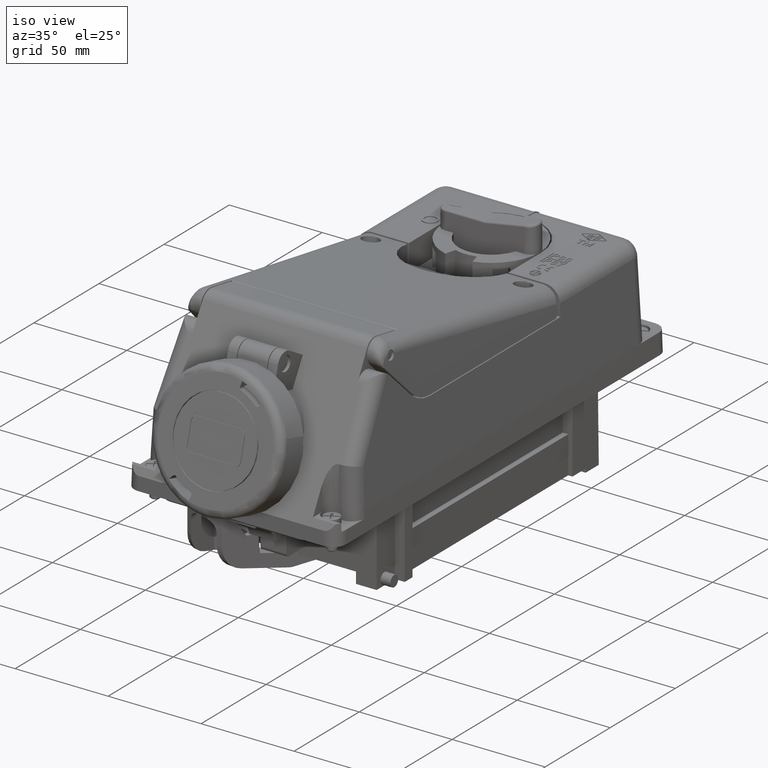
[diagram: clean part render]
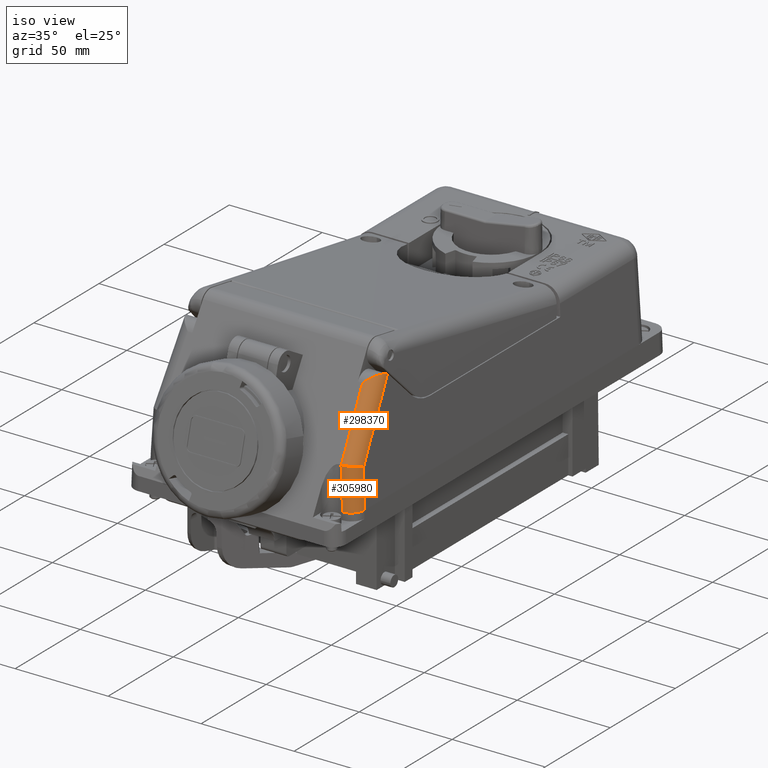
[diagram: same view with one multi-face feature highlighted, each face labeled with its STEP entity id]
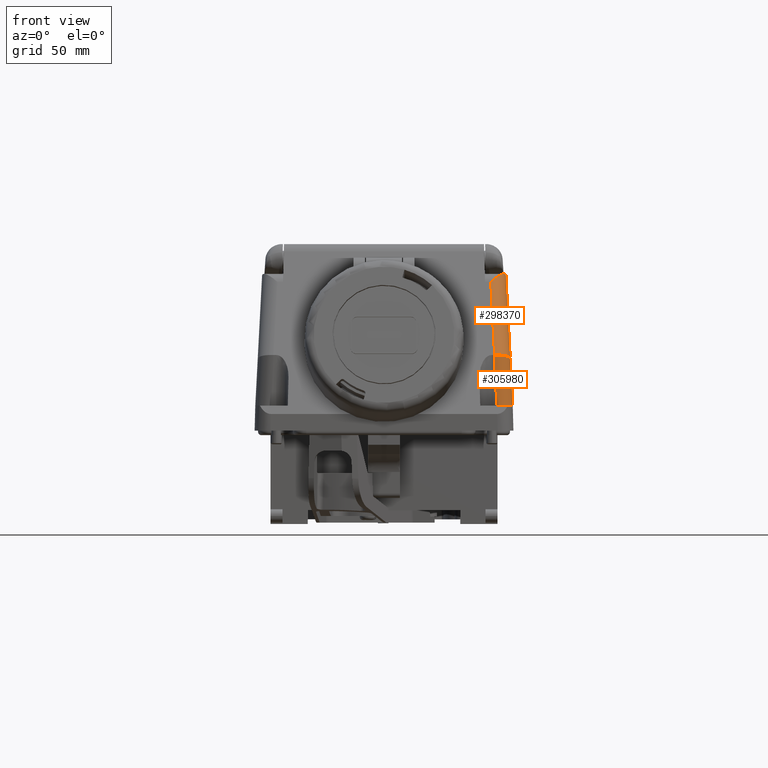
[diagram: same view with one multi-face feature highlighted, each face labeled with its STEP entity id]
A machine part, iso view. The highlighted faces form ONE feature: a constant-radius fillet chain: 2 tangent blend faces with common blend radius 7 mm. The faces share edges in the B-rep.
A second angle (front view) of the same feature is appended — it is thin or edge-on in the first view.
Their STEP definitions:
[1] entity #298370 (Cylinder):
#45150=CARTESIAN_POINT('',(329.221085170433,-44.4128734806658,
0.36635309462278));
#45160=DIRECTION('',(-0.0453397938043386,0.499485761991291,
0.86513483149493));
#45170=VECTOR('',#45160,1.);
#45180=LINE('',#45150,#45170);
#45190=CARTESIAN_POINT('',(328.626259109563,-37.859973184115,
11.7163108416975));
#45200=VERTEX_POINT('',#45190);
#45210=CARTESIAN_POINT('',(326.713128967567,-16.783978200918,
48.2210097858363));
#45220=VERTEX_POINT('',#45210);
#45230=EDGE_CURVE('',#45200,#45220,#45180,.T.);
#278890=CARTESIAN_POINT('',(320.025918947712,-26.1863223986818,
45.5693194323287));
#278900=VERTEX_POINT('',#278890);
#278930=CARTESIAN_POINT('',(321.710776016821,-44.7475474593456,
13.4203303376661));
#278940=DIRECTION('',(-0.0453397938045354,0.49948576199129,
0.865134831494919));
#278950=VECTOR('',#278940,1.);
#278960=LINE('',#278930,#278950);
#278970=CARTESIAN_POINT('',(321.71633446719,-44.8087821184707,
13.3142687828944));
#278980=VERTEX_POINT('',#278970);
#278990=EDGE_CURVE('',#278980,#278900,#278960,.T.);
#280900=CARTESIAN_POINT('',(320.025918947713,-20.124144372365,
42.0693197784372));
#280910=DIRECTION('',(0.722959125333056,-0.345445367856198,
-0.598329007256342));
#280920=DIRECTION('',(0.690890804033216,0.361479526920452,
0.626100989074209));
#280930=AXIS2_PLACEMENT_3D('',#280900,#280910,#280920);
#280940=ELLIPSE('',#280930,9.68242844542025,7.);
#280950=EDGE_CURVE('',#45220,#278900,#280940,.T.);
#298200=CARTESIAN_POINT('',(322.230678427154,-44.4128734597496,
1.40093495334191E-6));
#298210=DIRECTION('',(-0.0453397938045353,0.499485761991291,
0.865134831494919));
#298220=DIRECTION('',(1.63066936511445E-21,0.866025432330981,
-0.499999950555935));
#298230=AXIS2_PLACEMENT_3D('',#298200,#298210,#298220);
#298240=CYLINDRICAL_SURFACE('',#298230,7.);
#298250=CARTESIAN_POINT('',(321.635852366281,-37.8599731631989,
11.3499591479969));
#298260=DIRECTION('',(0.0503754839753367,-0.271137451399429,
-0.961221510923925));
#298270=DIRECTION('',(-0.0141902406644133,-0.962540639375098,
0.27076586679503));
#298280=AXIS2_PLACEMENT_3D('',#298250,#298260,#298270);
#298290=ELLIPSE('',#298280,7.22170995886985,7.);
#298300=EDGE_CURVE('',#45200,#278980,#298290,.T.);
#298310=ORIENTED_EDGE('',*,*,#298300,.F.);
#298320=ORIENTED_EDGE('',*,*,#278990,.F.);
#298330=ORIENTED_EDGE('',*,*,#280950,.T.);
#298340=ORIENTED_EDGE('',*,*,#45230,.T.);
#298350=EDGE_LOOP('',(#298340,#298330,#298320,#298310));
#298360=FACE_OUTER_BOUND('',#298350,.T.);
#298370=ADVANCED_FACE('',(#298360),#298240,.T.);
[2] entity #305980 (Cylinder):
#45190=CARTESIAN_POINT('',(328.626259109563,-37.859973184115,
11.7163108416975));
#45200=VERTEX_POINT('',#45190);
#46020=CARTESIAN_POINT('',(329.711951581492,-38.4024460063102,
-8.99993564698684));
#46030=VERTEX_POINT('',#46020);
#46060=CARTESIAN_POINT('',(329.221085262574,-38.1571816757294,
0.366351693700609));
#46070=DIRECTION('',(0.0523180711154625,-0.0261410412465996,
-0.998288267684891));
#46080=VECTOR('',#46070,1.);
#46090=LINE('',#46060,#46080);
#46100=EDGE_CURVE('',#45200,#46030,#46090,.T.);
#278970=CARTESIAN_POINT('',(321.71633446719,-44.8087821184707,
13.3142687828944));
#278980=VERTEX_POINT('',#278970);
#279010=CARTESIAN_POINT('',(320.867284808342,-37.475953725851,
26.0151017967106));
#279020=DIRECTION('',(6.32178011026033E-14,0.866025432330981,
-0.499999950555935));
#279030=DIRECTION('',(0.0595083718710149,-0.499113853895431,
-0.864490667692203));
#279040=AXIS2_PLACEMENT_3D('',#279010,#279020,#279030);
#279050=ELLIPSE('',#279040,14.6902884902408,7.);
#279060=CARTESIAN_POINT('',(321.542715130496,-44.8110378642777,
13.3103617160326));
#279070=VERTEX_POINT('',#279060);
#279080=EDGE_CURVE('',#278980,#279070,#279050,.T.);
#279700=CARTESIAN_POINT('',(322.716752313022,-45.3976526564379,
-9.0916022738343));
#279710=VERTEX_POINT('',#279700);
#279910=CARTESIAN_POINT('',(322.230678519292,-45.1547829401038,
0.183238238640484));
#279920=DIRECTION('',(0.0523180711154625,-0.0261410412465996,
-0.998288267684891));
#279930=VECTOR('',#279920,1.);
#279940=LINE('',#279910,#279930);
#279950=EDGE_CURVE('',#279070,#279710,#279940,.T.);
#296230=CARTESIAN_POINT('',(322.473882021123,-38.1571816087764,
1.75808123602372E-6));
#296240=DIRECTION('',(0.0261679842648657,-0.0261679272110053,
-0.999315003482382));
#296250=DIRECTION('',(5.95194889054321E-15,-0.999657326470078,
0.0261768912343549));
#296260=AXIS2_PLACEMENT_3D('',#296230,#296240,#296250);
#296270=CYLINDRICAL_SURFACE('',#296260,7.);
#296300=CARTESIAN_POINT('',(322.230678519292,-38.1571816548133,0.));
#296310=DIRECTION('',(0.0523180711154625,-0.0261410412465996,
-0.998288267684891));
#296320=DIRECTION('',(-0.998629534758663,0.,-0.0523359561649146));
#296330=AXIS2_PLACEMENT_3D('',#296300,#296310,#296320);
#296340=CYLINDRICAL_SURFACE('',#296330,7.);
#296350=CARTESIAN_POINT('',(322.716752313022,-45.3976526564379,
-9.0916022738343));
#296360=CARTESIAN_POINT('',(322.830573127503,-45.3975356326443,
-9.08713330570449));
#296370=CARTESIAN_POINT('',(322.9443683949,-45.3946404672233,
-9.08273808913364));
#296380=CARTESIAN_POINT('',(323.058085251456,-45.3889661858191,
-9.07841872711425));
#296390=CARTESIAN_POINT('',(323.171844691516,-45.3832897795691,
-9.07409774762515));
#296400=CARTESIAN_POINT('',(323.285690732214,-45.3748216151378,
-9.06984647018852));
#296410=CARTESIAN_POINT('',(323.39942567793,-45.3635480470977,
-9.06567301960673));
#296420=CARTESIAN_POINT('',(323.513160306723,-45.3522745104714,
-9.06149958065426));
#296430=CARTESIAN_POINT('',(323.626782406735,-45.3381955980786,
-9.05740402416194));
#296440=CARTESIAN_POINT('',(323.740087102496,-45.321317659571,
-9.05339423343442));
#296450=CARTESIAN_POINT('',(323.853391622684,-45.3044397472169,
-9.04938444892034));
#296460=CARTESIAN_POINT('',(323.966377262418,-45.2847629647088,
-9.04546048408962));
#296470=CARTESIAN_POINT('',(324.078837108675,-45.2623145476343,
-9.04162975539008));
#296480=CARTESIAN_POINT('',(324.191296913376,-45.2398661388551,
-9.0377990281061));
#296490=CARTESIAN_POINT('',(324.303229444179,-45.2146463756392,
-9.03406158778131));
#296500=CARTESIAN_POINT('',(324.41443066417,-45.1867032052926,
-9.03042419551262));
#296510=CARTESIAN_POINT('',(324.525631972724,-45.1587600126914,
-9.02678680034702));
#296520=CARTESIAN_POINT('',(324.63610052207,-45.1280938104254,
-9.02324949973623));
#296530=CARTESIAN_POINT('',(324.745639841315,-45.0947720477873,
-9.01981824682189));
#296540=CARTESIAN_POINT('',(324.855179378802,-45.06145021876,
-9.01638698707124));
#296550=CARTESIAN_POINT('',(324.963788305758,-45.0254733342588,
-9.01306181603299));
#296560=CARTESIAN_POINT('',(325.071282185679,-44.9869260928552,
-9.00984776233645));
#296570=CARTESIAN_POINT('',(325.178789961342,-44.9483738684471,
-9.00663329315897));
#296580=CARTESIAN_POINT('',(325.285123581014,-44.9072749426467,
-9.00353164428174));
#296590=CARTESIAN_POINT('',(325.390278771093,-44.8636604577511,
-9.00054216812116));
#296600=CARTESIAN_POINT('',(325.495490576975,-44.8200224907136,
-8.99755108241955));
#296610=CARTESIAN_POINT('',(325.59975471805,-44.7737667243069,
-8.99466577991118));
#296620=CARTESIAN_POINT('',(325.702881392245,-44.7249626216755,
-8.99189189899246));
#296630=CARTESIAN_POINT('',(325.806007963731,-44.6761585676514,
-8.98911802083645));
#296640=CARTESIAN_POINT('',(325.907995741843,-44.6248067602836,
-8.98645560112384));
#296650=CARTESIAN_POINT('',(326.008660482497,-44.5709960395684,
-8.98390955247106));
#296660=CARTESIAN_POINT('',(326.109325241706,-44.5171853089353,
-8.98136350334903));
#296670=CARTESIAN_POINT('',(326.208665680817,-44.460916359105,
-8.97893385750858));
#296680=CARTESIAN_POINT('',(326.306507549372,-44.4022954905257,
-8.97662467769541));
#296690=CARTESIAN_POINT('',(326.404355328406,-44.3436710807485,
-8.97431535838819));
#296700=CARTESIAN_POINT('',(326.500678878542,-44.2827113795683,
-8.97212707782697));
#296710=CARTESIAN_POINT('',(326.595386989399,-44.2194914262323,
-8.97006145471333));
#296720=CARTESIAN_POINT('',(326.690131761686,-44.1562470005056,
-8.96799503199872));
#296730=CARTESIAN_POINT('',(326.783440410976,-44.0906183915446,
-8.96604746661511));
#296740=CARTESIAN_POINT('',(326.87514012079,-44.0227102463228,
-8.96422280827126));
#296750=CARTESIAN_POINT('',(326.96683973537,-43.9548021716266,
-8.96239815182241));
#296760=CARTESIAN_POINT('',(327.056929221603,-43.8846153884602,
-8.96069642744595));
#296770=CARTESIAN_POINT('',(327.145244858861,-43.8122725370622,
-8.9591208563051));
#296780=CARTESIAN_POINT('',(327.233560508708,-43.7399296753518,
-8.95754528493966));
#296790=CARTESIAN_POINT('',(327.320101184489,-43.6654316745184,
-8.95609588668559));
#296800=CARTESIAN_POINT('',(327.404716261134,-43.5889164481353,
-8.95477496822985));
#296810=CARTESIAN_POINT('',(327.489335545954,-43.5123974164069,
-8.95345398408063));
#296820=CARTESIAN_POINT('',(327.572011050389,-43.4338788007205,
-8.95226173211173));
#296830=CARTESIAN_POINT('',(327.652656864746,-43.3534623458567,
-8.9511989234542));
#296840=CARTESIAN_POINT('',(327.733343188248,-43.2730054970569,
-8.95013558093797));
#296850=CARTESIAN_POINT('',(327.812251580195,-43.1903944714714,
-8.94919850253566));
#296860=CARTESIAN_POINT('',(327.889224586192,-43.1057446445668,
-8.94839085343472));
#296870=CARTESIAN_POINT('',(327.966197317561,-43.0210951196806,
-8.94758320721536));
#296880=CARTESIAN_POINT('',(328.041233607652,-42.9344077375403,
-8.94690500704222));
#296890=CARTESIAN_POINT('',(328.114181868354,-42.8458189745703,
-8.94635863507877));
#296900=CARTESIAN_POINT('',(328.187129962757,-42.7572304135548,
-8.94581226436087));
#296910=CARTESIAN_POINT('',(328.257989014371,-42.6667415559575,
-8.94539773327605));
#296920=CARTESIAN_POINT('',(328.326618209386,-42.5745074355115,
-8.94511651472195));
#296930=CARTESIAN_POINT('',(328.395247330658,-42.4822734141718,
-8.94483529647003));
#296940=CARTESIAN_POINT('',(328.461645651362,-42.3882953251334,
-8.94468739654088));
#296950=CARTESIAN_POINT('',(328.525687112044,-42.2927435816604,
-8.94467330540736));
#296960=CARTESIAN_POINT('',(328.58972857847,-42.1971918296189,
-8.94465921427258));
#296970=CARTESIAN_POINT('',(328.651412333661,-42.1000676997495,
-8.94477893194793));
#296980=CARTESIAN_POINT('',(328.710630161837,-42.0015532101313,
-8.94503194394265));
#296990=CARTESIAN_POINT('',(328.769848064478,-41.9030385966353,
-8.94528495625552));
#297000=CARTESIAN_POINT('',(328.826599302055,-41.8031349508536,
-8.94567125712704));
#297010=CARTESIAN_POINT('',(328.880795717039,-41.7020315288538,
-8.94618935443864));
#297020=CARTESIAN_POINT('',(328.934992266046,-41.600927856836,
-8.94670745303144));
#297030=CARTESIAN_POINT('',(328.986633385918,-41.4986257538311,
-8.94735733666942));
#297040=CARTESIAN_POINT('',(329.035652300916,-41.3953167398402,
-8.94813661386598));
#297050=CARTESIAN_POINT('',(329.084672174022,-41.2920057066057,
-8.94891590629402));
#297060=CARTESIAN_POINT('',(329.131066288862,-41.1876962488031,
-8.94982450966716));
#297070=CARTESIAN_POINT('',(329.174798212245,-41.0825560668896,
-8.95085946406909));
#297080=CARTESIAN_POINT('',(329.21854785914,-40.9773732741532,
-8.95189483791349));
#297090=CARTESIAN_POINT('',(329.259831719392,-40.8708807075706,
-8.9530613903504));
#297100=CARTESIAN_POINT('',(329.298548295947,-40.7632445086338,
-8.95435875865212));
#297110=CARTESIAN_POINT('',(329.337264731617,-40.6556087013725,
-8.95565612223287));
#297120=CARTESIAN_POINT('',(329.373413268439,-40.5468305329363,
-8.9570842925622));
#297130=CARTESIAN_POINT('',(329.406905741198,-40.4370935643673,
-8.95864192695369));
#297140=CARTESIAN_POINT('',(329.440398135423,-40.3273568531107,
-8.96019955769282));
#297150=CARTESIAN_POINT('',(329.471233942326,-40.2166627281144,
-8.96188663675216));
#297160=CARTESIAN_POINT('',(329.499341940045,-40.1052079427702,
-8.96370081028585));
#297170=CARTESIAN_POINT('',(329.527449905837,-39.9937532840299,
-8.96551498175877));
#297180=CARTESIAN_POINT('',(329.552829645435,-39.8815394287696,
-8.96745622575991));
#297190=CARTESIAN_POINT('',(329.575429387054,-39.7687718664821,
-8.96952119548939));
#297200=CARTESIAN_POINT('',(329.598029129346,-39.656004300834,
-8.9715861652804));
#297210=CARTESIAN_POINT('',(329.617848573268,-39.5426845332195,
-8.97377483318848));
#297220=CARTESIAN_POINT('',(329.634856849236,-39.429022125318,
-8.97608292453311));
#297230=CARTESIAN_POINT('',(329.651865145557,-39.3153595813979,
-8.97839101863981));
#297240=CARTESIAN_POINT('',(329.666062097355,-39.2013559074147,
-8.98081850357426));
#297250=CARTESIAN_POINT('',(329.677438153274,-39.0872198648918,
-8.98336028800494));
#297260=CARTESIAN_POINT('',(329.688814236598,-38.9730835474151,
-8.98590207855877));
#297270=CARTESIAN_POINT('',(329.69736937563,-38.8588163392801,
-8.98855813181178));
#297280=CARTESIAN_POINT('',(329.703114698357,-38.7446211132594,
-8.99132269814879));
#297290=CARTESIAN_POINT('',(329.708860042391,-38.6304254637333,
-8.99408727473851));
#297300=CARTESIAN_POINT('',(329.711795651104,-38.5163032012778,
-8.9969603244385));
#297310=CARTESIAN_POINT('',(329.711951581492,-38.4024460063103,
-8.99993564698874));
#297320=B_SPLINE_CURVE_WITH_KNOTS('',3,(#296350,#296360,#296370,#296380,
#296390,#296400,#296410,#296420,#296430,#296440,#296450,#296460,#296470,
#296480,#296490,#296500,#296510,#296520,#296530,#296540,#296550,#296560,
#296570,#296580,#296590,#296600,#296610,#296620,#296630,#296640,#296650,
#296660,#296670,#296680,#296690,#296700,#296710,#296720,#296730,#296740,
#296750,#296760,#296770,#296780,#296790,#296800,#296810,#296820,#296830,
#296840,#296850,#296860,#296870,#296880,#296890,#296900,#296910,#296920,
#296930,#296940,#296950,#296960,#296970,#296980,#296990,#297000,#297010,
#297020,#297030,#297040,#297050,#297060,#297070,#297080,#297090,#297100,
#297110,#297120,#297130,#297140,#297150,#297160,#297170,#297180,#297190,
#297200,#297210,#297220,#297230,#297240,#297250,#297260,#297270,#297280,
#297290,#297300,#297310),.UNSPECIFIED.,.F.,.F.,(4,3,3,3,3,3,3,3,3,3,3,3,
3,3,3,3,3,3,3,3,3,3,3,3,3,3,3,3,3,3,3,3,4),(0.,0.341731794177535,
0.684288694507997,1.02781169823109,1.37189768496541,1.71612078384828,
2.06004974359972,2.4032649631949,2.74540985917122,3.08754376645767,
3.43002539876628,3.77244209347941,4.11439966544934,4.45651372324689,
4.79899002862405,5.1414161016388,5.48339449502951,5.8259724452427,
6.16976746871618,6.51438998501123,6.85941693005254,7.20440965866119,
7.54893085172531,7.89256150820311,8.23492330826985,8.57742820468067,
8.92116918933903,9.26575892992025,9.61077561007799,9.95578091860434,
10.3003369871412,10.6440233561419,10.9864550476042),.UNSPECIFIED.);
#297330=SURFACE_CURVE('',#297320,(#296270,#296340),.CURVE_3D.);
#297340=EDGE_CURVE('',#279710,#46030,#297330,.T.);
#298250=CARTESIAN_POINT('',(321.635852366281,-37.8599731631989,
11.3499591479969));
#298260=DIRECTION('',(0.0503754839753367,-0.271137451399429,
-0.961221510923925));
#298270=DIRECTION('',(-0.0141902406644133,-0.962540639375098,
0.27076586679503));
#298280=AXIS2_PLACEMENT_3D('',#298250,#298260,#298270);
#298290=ELLIPSE('',#298280,7.22170995886985,7.);
#298300=EDGE_CURVE('',#45200,#278980,#298290,.T.);
#305910=ORIENTED_EDGE('',*,*,#297340,.T.);
#305920=ORIENTED_EDGE('',*,*,#279950,.T.);
#305930=ORIENTED_EDGE('',*,*,#279080,.T.);
#305940=ORIENTED_EDGE('',*,*,#298300,.T.);
#305950=ORIENTED_EDGE('',*,*,#46100,.F.);
#305960=EDGE_LOOP('',(#305950,#305940,#305930,#305920,#305910));
#305970=FACE_OUTER_BOUND('',#305960,.T.);
#305980=ADVANCED_FACE('',(#305970),#296340,.T.);